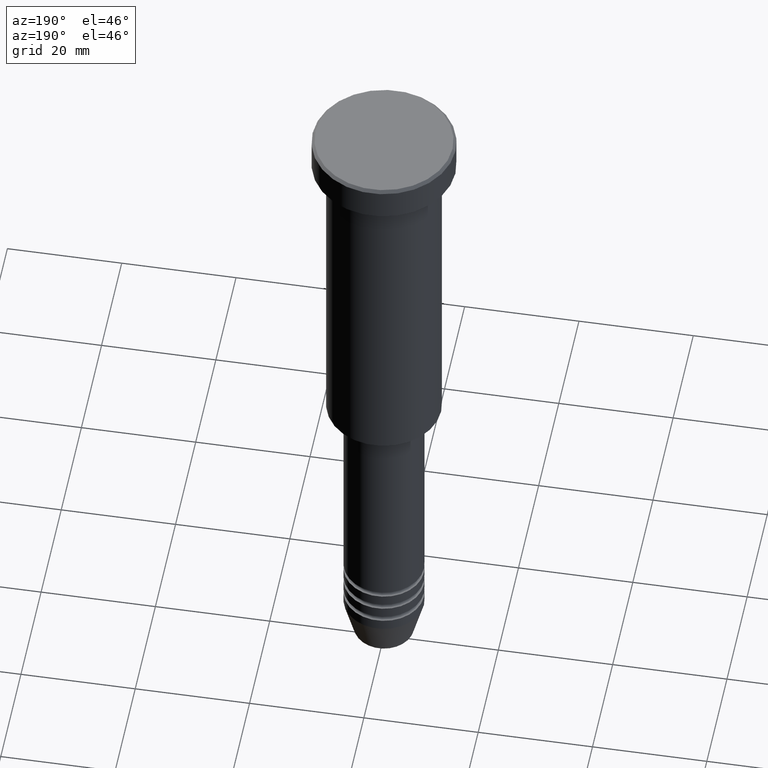
[diagram: clean part render]
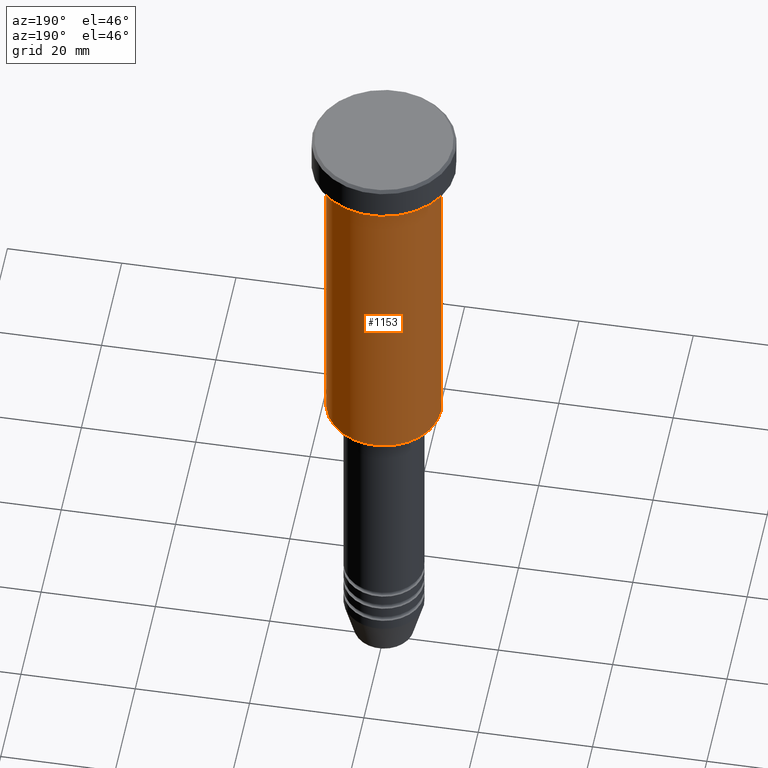
[diagram: same view with one face highlighted and labeled with its STEP entity id]
A machine part, auxiliary view. The second image highlights one B-rep face of the part: STEP entity #1153.
In plain terms, the highlighted cylindrical surface (partial cylindrical patch) has radius 10 mm, axis along (-0, -0, 1).
Its self-contained STEP definition (entity closure, byte-faithful):
#6 = DIRECTION ( 'NONE',  ( -1.000000000000000000, 0.000000000000000000, 0.000000000000000000 ) ) ;
#46 = VERTEX_POINT ( 'NONE', #1050 ) ;
#52 = CARTESIAN_POINT ( 'NONE',  ( 0.000000000000000000, 0.000000000000000000, -6.999999999999996447 ) ) ;
#71 = EDGE_CURVE ( 'NONE', #741, #1006, #148, .T. ) ;
#135 = AXIS2_PLACEMENT_3D ( 'NONE', #1094, #892, #6 ) ;
#148 = CIRCLE ( 'NONE', #674, 10.00000000000000000 ) ;
#176 = EDGE_CURVE ( 'NONE', #46, #1006, #248, .T. ) ;
#228 = ORIENTED_EDGE ( 'NONE', *, *, #71, .F. ) ;
#233 = VECTOR ( 'NONE', #454, 1000.000000000000000 ) ;
#238 = VECTOR ( 'NONE', #601, 1000.000000000000000 ) ;
#248 = LINE ( 'NONE', #820, #233 ) ;
#256 = ORIENTED_EDGE ( 'NONE', *, *, #176, .T. ) ;
#401 = ORIENTED_EDGE ( 'NONE', *, *, #1158, .F. ) ;
#418 = CYLINDRICAL_SURFACE ( 'NONE', #751, 10.00000000000000000 ) ;
#427 = FACE_OUTER_BOUND ( 'NONE', #536, .T. ) ;
#454 = DIRECTION ( 'NONE',  ( -0.000000000000000000, -0.000000000000000000, 1.000000000000000000 ) ) ;
#508 = DIRECTION ( 'NONE',  ( 1.000000000000000000, 0.000000000000000000, 0.000000000000000000 ) ) ;
#536 = EDGE_LOOP ( 'NONE', ( #673, #256, #228, #401 ) ) ;
#545 = CARTESIAN_POINT ( 'NONE',  ( 10.00000000000000000, 0.000000000000000000, -6.999999999999996447 ) ) ;
#587 = LINE ( 'NONE', #1046, #238 ) ;
#601 = DIRECTION ( 'NONE',  ( -0.000000000000000000, -0.000000000000000000, 1.000000000000000000 ) ) ;
#673 = ORIENTED_EDGE ( 'NONE', *, *, #904, .T. ) ;
#674 = AXIS2_PLACEMENT_3D ( 'NONE', #52, #882, #508 ) ;
#677 = CARTESIAN_POINT ( 'NONE',  ( -10.00000000000000000, 1.224646799147353256E-15, -6.999999999999996447 ) ) ;
#697 = DIRECTION ( 'NONE',  ( 1.000000000000000000, 0.000000000000000000, 0.000000000000000000 ) ) ;
#732 = CIRCLE ( 'NONE', #135, 10.00000000000000000 ) ;
#741 = VERTEX_POINT ( 'NONE', #545 ) ;
#751 = AXIS2_PLACEMENT_3D ( 'NONE', #1137, #1054, #697 ) ;
#820 = CARTESIAN_POINT ( 'NONE',  ( -10.00000000000000000, 1.224646799147353256E-15, 0.000000000000000000 ) ) ;
#882 = DIRECTION ( 'NONE',  ( -0.000000000000000000, -0.000000000000000000, 1.000000000000000000 ) ) ;
#892 = DIRECTION ( 'NONE',  ( -0.000000000000000000, -0.000000000000000000, 1.000000000000000000 ) ) ;
#904 = EDGE_CURVE ( 'NONE', #1003, #46, #732, .T. ) ;
#1003 = VERTEX_POINT ( 'NONE', #1086 ) ;
#1006 = VERTEX_POINT ( 'NONE', #677 ) ;
#1046 = CARTESIAN_POINT ( 'NONE',  ( 10.00000000000000000, 0.000000000000000000, 0.000000000000000000 ) ) ;
#1050 = CARTESIAN_POINT ( 'NONE',  ( -10.00000000000000000, 1.224646799147353256E-15, -65.49999999999997158 ) ) ;
#1054 = DIRECTION ( 'NONE',  ( -0.000000000000000000, -0.000000000000000000, 1.000000000000000000 ) ) ;
#1086 = CARTESIAN_POINT ( 'NONE',  ( 10.00000000000000000, 0.000000000000000000, -65.49999999999997158 ) ) ;
#1094 = CARTESIAN_POINT ( 'NONE',  ( 0.000000000000000000, 0.000000000000000000, -65.49999999999997158 ) ) ;
#1137 = CARTESIAN_POINT ( 'NONE',  ( 0.000000000000000000, 0.000000000000000000, 0.000000000000000000 ) ) ;
#1153 = ADVANCED_FACE ( 'NONE', ( #427 ), #418, .T. ) ;
#1158 = EDGE_CURVE ( 'NONE', #1003, #741, #587, .T. ) ;